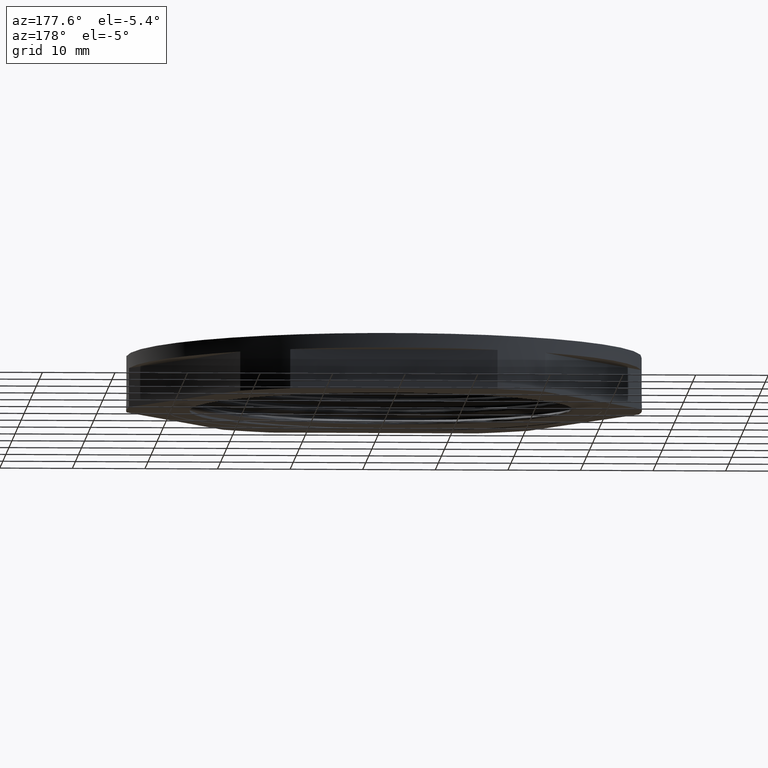
[diagram: clean part render]
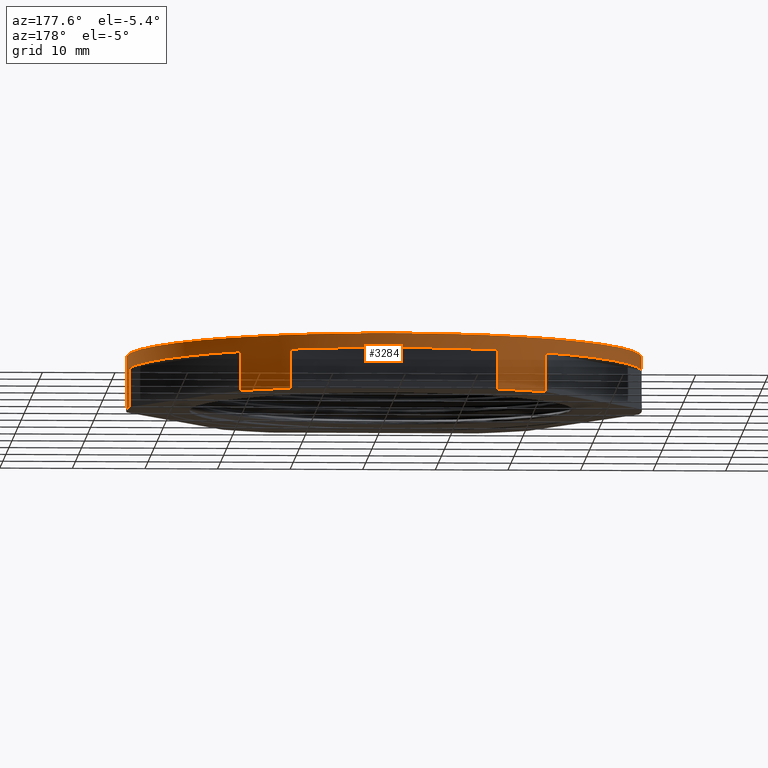
[diagram: same view with one face highlighted and labeled with its STEP entity id]
A machine part, auxiliary view. The second image highlights one B-rep face of the part: STEP entity #3284.
In plain terms, the highlighted cylindrical surface (partial cylindrical patch) has radius 35.5 mm, axis along (0, 0, 1).
Its self-contained STEP definition (entity closure, byte-faithful):
#1 = ORIENTED_EDGE ( 'NONE', *, *, #3301, .T. ) ;
#2 = ORIENTED_EDGE ( 'NONE', *, *, #3328, .T. ) ;
#9 = ORIENTED_EDGE ( 'NONE', *, *, #3389, .T. ) ;
#10 = ORIENTED_EDGE ( 'NONE', *, *, #3295, .T. ) ;
#12 = ORIENTED_EDGE ( 'NONE', *, *, #3390, .T. ) ;
#13 = ORIENTED_EDGE ( 'NONE', *, *, #3349, .T. ) ;
#19 = ORIENTED_EDGE ( 'NONE', *, *, #3327, .T. ) ;
#21 = ORIENTED_EDGE ( 'NONE', *, *, #3323, .F. ) ;
#25 = ORIENTED_EDGE ( 'NONE', *, *, #3315, .T. ) ;
#31 = ORIENTED_EDGE ( 'NONE', *, *, #3313, .T. ) ;
#36 = ORIENTED_EDGE ( 'NONE', *, *, #3366, .T. ) ;
#41 = ORIENTED_EDGE ( 'NONE', *, *, #3299, .T. ) ;
#43 = ORIENTED_EDGE ( 'NONE', *, *, #3325, .T. ) ;
#46 = ORIENTED_EDGE ( 'NONE', *, *, #3361, .T. ) ;
#51 = ORIENTED_EDGE ( 'NONE', *, *, #3311, .F. ) ;
#55 = VERTEX_POINT ( 'NONE', #164 ) ;
#64 = VERTEX_POINT ( 'NONE', #142 ) ;
#66 = VERTEX_POINT ( 'NONE', #137 ) ;
#67 = VERTEX_POINT ( 'NONE', #158 ) ;
#74 = VERTEX_POINT ( 'NONE', #146 ) ;
#75 = VERTEX_POINT ( 'NONE', #136 ) ;
#83 = VERTEX_POINT ( 'NONE', #151 ) ;
#103 = VERTEX_POINT ( 'NONE', #225 ) ;
#105 = VERTEX_POINT ( 'NONE', #229 ) ;
#106 = VERTEX_POINT ( 'NONE', #192 ) ;
#107 = VERTEX_POINT ( 'NONE', #180 ) ;
#121 = VERTEX_POINT ( 'NONE', #211 ) ;
#126 = VERTEX_POINT ( 'NONE', #182 ) ;
#127 = VERTEX_POINT ( 'NONE', #188 ) ;
#136 = CARTESIAN_POINT ( 'NONE',  ( 35.50000000000001400, 0.0000000000000000000, 7.400000000000000400 ) ) ;
#137 = CARTESIAN_POINT ( 'NONE',  ( 35.28725405153711100, 3.880683123146972100, 5.400000000000000400 ) ) ;
#139 = VERTEX_POINT ( 'NONE', #223 ) ;
#142 = CARTESIAN_POINT ( 'NONE',  ( -35.50000000000001400, 4.347496136973104900E-015, 0.0000000000000000000 ) ) ;
#146 = CARTESIAN_POINT ( 'NONE',  ( -14.28285685708567100, 32.50000000000002800, 5.400000000000000400 ) ) ;
#148 = VERTEX_POINT ( 'NONE', #212 ) ;
#151 = CARTESIAN_POINT ( 'NONE',  ( 35.28725405153711800, 3.880683123146964100, 0.0000000000000000000 ) ) ;
#158 = CARTESIAN_POINT ( 'NONE',  ( -14.28285685708567100, 32.50000000000002800, 0.0000000000000000000 ) ) ;
#164 = CARTESIAN_POINT ( 'NONE',  ( 35.50000000000001400, 0.0000000000000000000, 0.0000000000000000000 ) ) ;
#180 = CARTESIAN_POINT ( 'NONE',  ( -21.00439719445141400, 28.61931687685298800, 0.0000000000000000000 ) ) ;
#182 = CARTESIAN_POINT ( 'NONE',  ( -35.28725405153711800, 3.880683123147014200, 5.400000000000000400 ) ) ;
#188 = CARTESIAN_POINT ( 'NONE',  ( 14.28285685708567200, 32.50000000000002800, 0.0000000000000000000 ) ) ;
#192 = CARTESIAN_POINT ( 'NONE',  ( 21.00439719445137100, 28.61931687685302000, 5.400000000000000400 ) ) ;
#211 = CARTESIAN_POINT ( 'NONE',  ( -35.50000000000001400, 4.347496136973104900E-015, 7.400000000000000400 ) ) ;
#212 = CARTESIAN_POINT ( 'NONE',  ( -21.00439719445142100, 28.61931687685298400, 5.400000000000000400 ) ) ;
#223 = CARTESIAN_POINT ( 'NONE',  ( -35.28725405153712600, 3.880683123146992900, 0.0000000000000000000 ) ) ;
#225 = CARTESIAN_POINT ( 'NONE',  ( 14.28285685708567200, 32.50000000000002800, 5.400000000000000400 ) ) ;
#229 = CARTESIAN_POINT ( 'NONE',  ( 21.00439719445136400, 28.61931687685302000, 0.0000000000000000000 ) ) ;
#374 = EDGE_LOOP ( 'NONE', ( #525, #19, #21, #51, #10, #43, #41, #1, #9, #12, #13, #31, #2, #25, #46, #36 ) ) ;
#525 = ORIENTED_EDGE ( 'NONE', *, *, #3321, .T. ) ;
#841 = DIRECTION ( 'NONE',  ( 0.0000000000000000000, 0.0000000000000000000, 1.000000000000000000 ) ) ;
#842 = DIRECTION ( 'NONE',  ( 1.000000000000000000, 0.0000000000000000000, 0.0000000000000000000 ) ) ;
#845 = CARTESIAN_POINT ( 'NONE',  ( 14.28285685708566900, 32.50000000000002800, -7.000000000000002700 ) ) ;
#846 = CARTESIAN_POINT ( 'NONE',  ( 0.0000000000000000000, 0.0000000000000000000, 0.0000000000000000000 ) ) ;
#848 = DIRECTION ( 'NONE',  ( 0.0000000000000000000, 0.0000000000000000000, 1.000000000000000000 ) ) ;
#856 = LINE ( 'NONE', #845, #3557 ) ;
#1443 = DIRECTION ( 'NONE',  ( 1.000000000000000000, 0.0000000000000000000, 0.0000000000000000000 ) ) ;
#1453 = CARTESIAN_POINT ( 'NONE',  ( 35.28725405153711800, 3.880683123146979600, -7.000000000000002700 ) ) ;
#1456 = CARTESIAN_POINT ( 'NONE',  ( 0.0000000000000000000, 0.0000000000000000000, 0.0000000000000000000 ) ) ;
#1461 = CARTESIAN_POINT ( 'NONE',  ( 0.0000000000000000000, 0.0000000000000000000, 7.400000000000000400 ) ) ;
#1465 = DIRECTION ( 'NONE',  ( 1.000000000000000000, 0.0000000000000000000, 0.0000000000000000000 ) ) ;
#1466 = LINE ( 'NONE', #1453, #3496 ) ;
#1475 = DIRECTION ( 'NONE',  ( 0.0000000000000000000, 0.0000000000000000000, 1.000000000000000000 ) ) ;
#1476 = DIRECTION ( 'NONE',  ( 0.0000000000000000000, 0.0000000000000000000, 1.000000000000000000 ) ) ;
#1481 = LINE ( 'NONE', #1592, #3494 ) ;
#1483 = DIRECTION ( 'NONE',  ( 0.0000000000000000000, 0.0000000000000000000, 1.000000000000000000 ) ) ;
#1580 = CARTESIAN_POINT ( 'NONE',  ( 0.0000000000000000000, 0.0000000000000000000, 0.0000000000000000000 ) ) ;
#1581 = DIRECTION ( 'NONE',  ( 0.0000000000000000000, 0.0000000000000000000, 1.000000000000000000 ) ) ;
#1582 = DIRECTION ( 'NONE',  ( 1.000000000000000000, 0.0000000000000000000, 0.0000000000000000000 ) ) ;
#1592 = CARTESIAN_POINT ( 'NONE',  ( -35.50000000000001400, 4.347496136973104900E-015, -7.000000000000002700 ) ) ;
#1594 = DIRECTION ( 'NONE',  ( 0.0000000000000000000, 0.0000000000000000000, 1.000000000000000000 ) ) ;
#2013 = CARTESIAN_POINT ( 'NONE',  ( 0.0000000000000000000, 0.0000000000000000000, 5.400000000000000400 ) ) ;
#2015 = DIRECTION ( 'NONE',  ( 0.0000000000000000000, 0.0000000000000000000, 1.000000000000000000 ) ) ;
#2016 = DIRECTION ( 'NONE',  ( 1.000000000000000000, 0.0000000000000000000, 0.0000000000000000000 ) ) ;
#2051 = DIRECTION ( 'NONE',  ( 0.0000000000000000000, 0.0000000000000000000, 1.000000000000000000 ) ) ;
#2054 = CARTESIAN_POINT ( 'NONE',  ( 0.0000000000000000000, 0.0000000000000000000, 5.400000000000000400 ) ) ;
#2057 = DIRECTION ( 'NONE',  ( 1.000000000000000000, 0.0000000000000000000, 0.0000000000000000000 ) ) ;
#2092 = CARTESIAN_POINT ( 'NONE',  ( -35.28725405153711800, 3.880683123147004000, -7.000000000000002700 ) ) ;
#2108 = DIRECTION ( 'NONE',  ( -0.0000000000000000000, -0.0000000000000000000, -1.000000000000000000 ) ) ;
#2109 = LINE ( 'NONE', #2092, #3556 ) ;
#2221 = CARTESIAN_POINT ( 'NONE',  ( 35.50000000000001400, 0.0000000000000000000, -7.000000000000002700 ) ) ;
#2224 = DIRECTION ( 'NONE',  ( 0.0000000000000000000, 0.0000000000000000000, 1.000000000000000000 ) ) ;
#2234 = CARTESIAN_POINT ( 'NONE',  ( -14.28285685708566500, 32.50000000000002800, -7.000000000000002700 ) ) ;
#2236 = LINE ( 'NONE', #2221, #3490 ) ;
#2240 = DIRECTION ( 'NONE',  ( -0.0000000000000000000, -0.0000000000000000000, -1.000000000000000000 ) ) ;
#2245 = DIRECTION ( 'NONE',  ( 0.0000000000000000000, 0.0000000000000000000, 1.000000000000000000 ) ) ;
#2257 = LINE ( 'NONE', #2234, #3491 ) ;
#2260 = CARTESIAN_POINT ( 'NONE',  ( -21.00439719445141400, 28.61931687685298800, -7.000000000000002700 ) ) ;
#2261 = LINE ( 'NONE', #2260, #3472 ) ;
#3035 = FACE_OUTER_BOUND ( 'NONE', #374, .T. ) ;
#3044 = DIRECTION ( 'NONE',  ( 0.0000000000000000000, 0.0000000000000000000, 1.000000000000000000 ) ) ;
#3053 = CYLINDRICAL_SURFACE ( 'NONE', #3437, 35.50000000000001400 ) ;
#3078 = DIRECTION ( 'NONE',  ( 1.000000000000000000, 0.0000000000000000000, 0.0000000000000000000 ) ) ;
#3080 = CARTESIAN_POINT ( 'NONE',  ( 0.0000000000000000000, 0.0000000000000000000, -7.000000000000002700 ) ) ;
#3086 = CARTESIAN_POINT ( 'NONE',  ( 0.0000000000000000000, 0.0000000000000000000, 0.0000000000000000000 ) ) ;
#3120 = DIRECTION ( 'NONE',  ( 0.0000000000000000000, 0.0000000000000000000, 1.000000000000000000 ) ) ;
#3121 = DIRECTION ( 'NONE',  ( 1.000000000000000000, 0.0000000000000000000, 0.0000000000000000000 ) ) ;
#3134 = CARTESIAN_POINT ( 'NONE',  ( 21.00439719445137500, 28.61931687685301600, -7.000000000000002700 ) ) ;
#3138 = DIRECTION ( 'NONE',  ( -0.0000000000000000000, -0.0000000000000000000, -1.000000000000000000 ) ) ;
#3144 = DIRECTION ( 'NONE',  ( 1.000000000000000000, 0.0000000000000000000, 0.0000000000000000000 ) ) ;
#3147 = CARTESIAN_POINT ( 'NONE',  ( 0.0000000000000000000, 0.0000000000000000000, 5.400000000000000400 ) ) ;
#3160 = LINE ( 'NONE', #3134, #3481 ) ;
#3164 = DIRECTION ( 'NONE',  ( 0.0000000000000000000, 0.0000000000000000000, 1.000000000000000000 ) ) ;
#3284 = ADVANCED_FACE ( 'NONE', ( #3035 ), #3053, .T. ) ;
#3295 = EDGE_CURVE ( 'NONE', #55, #83, #3488, .T. ) ;
#3299 = EDGE_CURVE ( 'NONE', #66, #106, #3482, .T. ) ;
#3301 = EDGE_CURVE ( 'NONE', #106, #105, #3160, .T. ) ;
#3311 = EDGE_CURVE ( 'NONE', #55, #75, #2236, .T. ) ;
#3313 = EDGE_CURVE ( 'NONE', #74, #67, #2257, .T. ) ;
#3315 = EDGE_CURVE ( 'NONE', #107, #148, #2261, .T. ) ;
#3321 = EDGE_CURVE ( 'NONE', #139, #64, #3486, .T. ) ;
#3323 = EDGE_CURVE ( 'NONE', #75, #121, #3477, .T. ) ;
#3325 = EDGE_CURVE ( 'NONE', #83, #66, #1466, .T. ) ;
#3327 = EDGE_CURVE ( 'NONE', #64, #121, #1481, .T. ) ;
#3328 = EDGE_CURVE ( 'NONE', #67, #107, #3478, .T. ) ;
#3349 = EDGE_CURVE ( 'NONE', #103, #74, #3532, .T. ) ;
#3361 = EDGE_CURVE ( 'NONE', #148, #126, #3526, .T. ) ;
#3366 = EDGE_CURVE ( 'NONE', #126, #139, #2109, .T. ) ;
#3389 = EDGE_CURVE ( 'NONE', #105, #127, #3515, .T. ) ;
#3390 = EDGE_CURVE ( 'NONE', #127, #103, #856, .T. ) ;
#3437 = AXIS2_PLACEMENT_3D ( 'NONE', #3080, #3044, #3078 ) ;
#3472 = VECTOR ( 'NONE', #2245, 1000.000000000000000 ) ;
#3477 = CIRCLE ( 'NONE', #3500, 35.50000000000001400 ) ;
#3478 = CIRCLE ( 'NONE', #3479, 35.50000000000001400 ) ;
#3479 = AXIS2_PLACEMENT_3D ( 'NONE', #1580, #1581, #1582 ) ;
#3480 = AXIS2_PLACEMENT_3D ( 'NONE', #3086, #3120, #3121 ) ;
#3481 = VECTOR ( 'NONE', #3138, 1000.000000000000000 ) ;
#3482 = CIRCLE ( 'NONE', #3483, 35.50000000000001400 ) ;
#3483 = AXIS2_PLACEMENT_3D ( 'NONE', #3147, #3164, #3144 ) ;
#3486 = CIRCLE ( 'NONE', #3498, 35.50000000000001400 ) ;
#3488 = CIRCLE ( 'NONE', #3480, 35.50000000000001400 ) ;
#3490 = VECTOR ( 'NONE', #2224, 1000.000000000000000 ) ;
#3491 = VECTOR ( 'NONE', #2240, 1000.000000000000000 ) ;
#3494 = VECTOR ( 'NONE', #1594, 1000.000000000000000 ) ;
#3496 = VECTOR ( 'NONE', #1475, 1000.000000000000000 ) ;
#3498 = AXIS2_PLACEMENT_3D ( 'NONE', #1456, #1483, #1443 ) ;
#3500 = AXIS2_PLACEMENT_3D ( 'NONE', #1461, #1476, #1465 ) ;
#3504 = AXIS2_PLACEMENT_3D ( 'NONE', #2054, #2051, #2057 ) ;
#3515 = CIRCLE ( 'NONE', #3520, 35.50000000000001400 ) ;
#3520 = AXIS2_PLACEMENT_3D ( 'NONE', #846, #841, #842 ) ;
#3521 = AXIS2_PLACEMENT_3D ( 'NONE', #2013, #2015, #2016 ) ;
#3526 = CIRCLE ( 'NONE', #3504, 35.50000000000001400 ) ;
#3532 = CIRCLE ( 'NONE', #3521, 35.50000000000001400 ) ;
#3556 = VECTOR ( 'NONE', #2108, 1000.000000000000000 ) ;
#3557 = VECTOR ( 'NONE', #848, 1000.000000000000000 ) ;